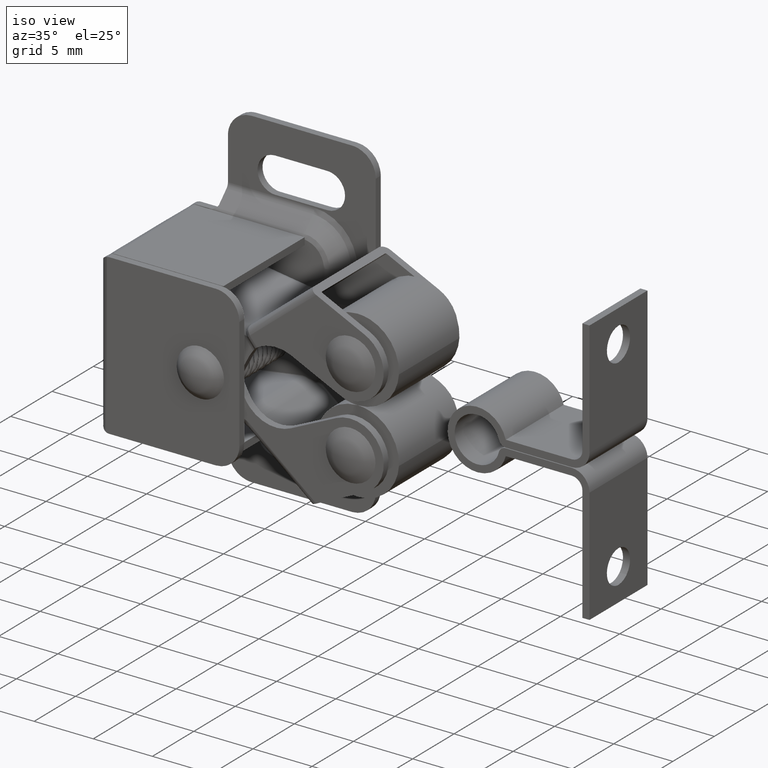
[diagram: clean part render]
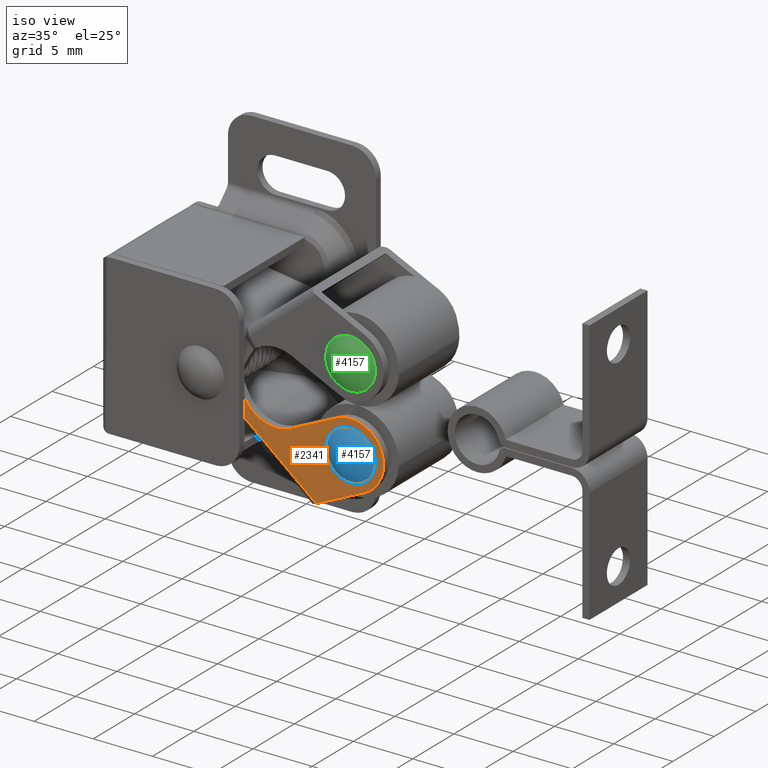
[diagram: same view with three faces highlighted in distinct colors, each labeled with its STEP entity id]
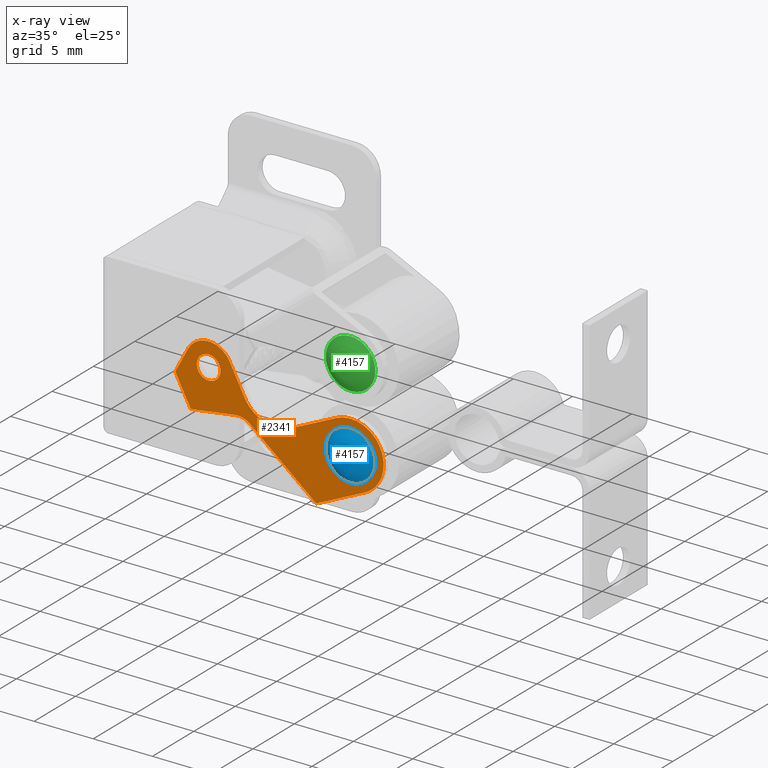
[diagram: x-ray of the same camera — body ghosted, the three highlighted faces saturated]
A machine part, iso view with three faces highlighted in distinct colors.
The next image is the same camera in x-ray (body ghosted, the three faces saturated) — at least one of them is partly hidden behind the body in this view.
Their STEP definitions:

[orange] entity #2341 — the highlighted face is a freeform B-spline surface patch.
#62=CARTESIAN_POINT('',(-0.200003999999993,-2.500000000001280,-9.000000000000002));
#63=VERTEX_POINT('',#62);
#64=CARTESIAN_POINT('',(0.796913333720286,-2.500000000001280,-9.921540904108889));
#65=VERTEX_POINT('',#64);
#66=CARTESIAN_POINT('',(-0.200003999999993,-2.500000000001280,-9.000000000000002));
#67=CARTESIAN_POINT('',(0.724386491354504,-2.500000000001280,-9.0));
#68=CARTESIAN_POINT('',(0.796913333720286,-2.500000000001280,-9.921540904108889));
#76=(BOUNDED_CURVE()B_SPLINE_CURVE(2,(#66,#67,#68),.UNSPECIFIED.,.F.,.U.)B_SPLINE_CURVE_WITH_KNOTS((3,3),(0.0,0.236331300576619),.UNSPECIFIED.)CURVE()GEOMETRIC_REPRESENTATION_ITEM()RATIONAL_B_SPLINE_CURVE((1.0,0.723120658670979,0.969723356054638))REPRESENTATION_ITEM(''));
#77=EDGE_CURVE('',#63,#65,#76,.T.);
#118=CARTESIAN_POINT('',(-1.196921333720272,-2.500000000001280,-10.078459095891111));
#119=VERTEX_POINT('',#118);
#125=CARTESIAN_POINT('',(-1.196921333720272,-2.500000000001280,-10.078459095891109));
#126=CARTESIAN_POINT('',(-1.200003999999993,-2.500000000001280,-10.039290107171691));
#127=CARTESIAN_POINT('',(-1.200003999999993,-2.500000000001280,-10.0));
#128=CARTESIAN_POINT('',(-1.200003999999993,-2.500000000001280,-9.000000000000002));
#129=CARTESIAN_POINT('',(-0.200003999999993,-2.500000000001280,-9.000000000000002));
#137=(BOUNDED_CURVE()B_SPLINE_CURVE(2,(#125,#126,#127,#128,#129),.UNSPECIFIED.,.F.,.U.)B_SPLINE_CURVE_WITH_KNOTS((3,2,3),(0.736331300576619,0.750000000000000,1.0),.UNSPECIFIED.)CURVE()GEOMETRIC_REPRESENTATION_ITEM()RATIONAL_B_SPLINE_CURVE((0.969723356054639,0.983986122515569,1.0,0.707106781186548,1.0))REPRESENTATION_ITEM(''));
#138=EDGE_CURVE('',#119,#63,#137,.T.);
#161=CARTESIAN_POINT('',(-0.200003999999993,-2.500000000001280,-11.0));
#162=VERTEX_POINT('',#161);
#163=CARTESIAN_POINT('',(0.796913333720286,-2.500000000001280,-9.921540904108889));
#164=CARTESIAN_POINT('',(0.799996000000007,-2.500000000001280,-9.960709892828307));
#165=CARTESIAN_POINT('',(0.799996000000007,-2.500000000001280,-10.0));
#166=CARTESIAN_POINT('',(0.799996000000007,-2.500000000001280,-11.0));
#167=CARTESIAN_POINT('',(-0.200003999999993,-2.500000000001280,-11.0));
#175=(BOUNDED_CURVE()B_SPLINE_CURVE(2,(#163,#164,#165,#166,#167),.UNSPECIFIED.,.F.,.U.)B_SPLINE_CURVE_WITH_KNOTS((3,2,3),(0.236331300576619,0.250000000000000,0.500000000000000),.UNSPECIFIED.)CURVE()GEOMETRIC_REPRESENTATION_ITEM()RATIONAL_B_SPLINE_CURVE((0.969723356054638,0.983986122515569,1.0,0.707106781186548,1.0))REPRESENTATION_ITEM(''));
#176=EDGE_CURVE('',#65,#162,#175,.T.);
#178=CARTESIAN_POINT('',(-0.200003999999993,-2.500000000001280,-11.0));
#179=CARTESIAN_POINT('',(-1.124394491354484,-2.500000000001280,-11.0));
#180=CARTESIAN_POINT('',(-1.196921333720271,-2.500000000001280,-10.078459095891109));
#188=(BOUNDED_CURVE()B_SPLINE_CURVE(2,(#178,#179,#180),.UNSPECIFIED.,.F.,.U.)B_SPLINE_CURVE_WITH_KNOTS((3,3),(0.500000000000000,0.736331300576618),.UNSPECIFIED.)CURVE()GEOMETRIC_REPRESENTATION_ITEM()RATIONAL_B_SPLINE_CURVE((1.0,0.723120658670980,0.969723356054636))REPRESENTATION_ITEM(''));
#189=EDGE_CURVE('',#162,#119,#188,.T.);
#620=CARTESIAN_POINT('',(11.799995999999901,-2.500000000001280,-5.400000000000000));
#621=VERTEX_POINT('',#620);
#622=CARTESIAN_POINT('',(12.896605067095930,-2.500000000001280,-6.413694994567136));
#623=VERTEX_POINT('',#622);
#624=CARTESIAN_POINT('',(11.799995999999901,-2.500000000001280,-5.400000000000000));
#625=CARTESIAN_POINT('',(12.816825540577945,-2.500000000001280,-5.399999999999999));
#626=CARTESIAN_POINT('',(12.896605067095937,-2.500000000001280,-6.413694994567136));
#634=(BOUNDED_CURVE()B_SPLINE_CURVE(2,(#624,#625,#626),.UNSPECIFIED.,.F.,.U.)B_SPLINE_CURVE_WITH_KNOTS((3,3),(0.0,0.236331300591425),.UNSPECIFIED.)CURVE()GEOMETRIC_REPRESENTATION_ITEM()RATIONAL_B_SPLINE_CURVE((1.0,0.723120658653632,0.969723356085537))REPRESENTATION_ITEM(''));
#635=EDGE_CURVE('',#621,#623,#634,.T.);
#676=CARTESIAN_POINT('',(10.703386932903859,-2.500000000001280,-6.586305005432863));
#677=VERTEX_POINT('',#676);
#683=CARTESIAN_POINT('',(10.703386932903863,-2.500000000001280,-6.586305005432863));
#684=CARTESIAN_POINT('',(10.699995999999903,-2.500000000001280,-6.543219117841283));
#685=CARTESIAN_POINT('',(10.699995999999899,-2.500000000001280,-6.500000000000000));
#686=CARTESIAN_POINT('',(10.699995999999899,-2.500000000001280,-5.400000000000000));
#687=CARTESIAN_POINT('',(11.799995999999901,-2.500000000001280,-5.400000000000000));
#695=(BOUNDED_CURVE()B_SPLINE_CURVE(2,(#683,#684,#685,#686,#687),.UNSPECIFIED.,.F.,.U.)B_SPLINE_CURVE_WITH_KNOTS((3,2,3),(0.736331300591425,0.750000000000000,1.0),.UNSPECIFIED.)CURVE()GEOMETRIC_REPRESENTATION_ITEM()RATIONAL_B_SPLINE_CURVE((0.969723356085537,0.983986122532915,1.0,0.707106781186548,1.0))REPRESENTATION_ITEM(''));
#696=EDGE_CURVE('',#677,#621,#695,.T.);
#719=CARTESIAN_POINT('',(11.799995999999901,-2.500000000001280,-7.600000000000000));
#720=VERTEX_POINT('',#719);
#721=CARTESIAN_POINT('',(12.896605067095937,-2.500000000001280,-6.413694994567136));
#722=CARTESIAN_POINT('',(12.899995999999900,-2.500000000001280,-6.456780882158716));
#723=CARTESIAN_POINT('',(12.899995999999900,-2.500000000001280,-6.500000000000000));
#724=CARTESIAN_POINT('',(12.899995999999900,-2.500000000001280,-7.600000000000000));
#725=CARTESIAN_POINT('',(11.799995999999901,-2.500000000001280,-7.600000000000000));
#733=(BOUNDED_CURVE()B_SPLINE_CURVE(2,(#721,#722,#723,#724,#725),.UNSPECIFIED.,.F.,.U.)B_SPLINE_CURVE_WITH_KNOTS((3,2,3),(0.236331300591425,0.250000000000000,0.500000000000000),.UNSPECIFIED.)CURVE()GEOMETRIC_REPRESENTATION_ITEM()RATIONAL_B_SPLINE_CURVE((0.969723356085537,0.983986122532915,1.0,0.707106781186548,1.0))REPRESENTATION_ITEM(''));
#734=EDGE_CURVE('',#623,#720,#733,.T.);
#736=CARTESIAN_POINT('',(11.799995999999901,-2.500000000001280,-7.600000000000000));
#737=CARTESIAN_POINT('',(10.783166459421864,-2.500000000001279,-7.599999999999999));
#738=CARTESIAN_POINT('',(10.703386932903866,-2.500000000001279,-6.586305005432863));
#746=(BOUNDED_CURVE()B_SPLINE_CURVE(2,(#736,#737,#738),.UNSPECIFIED.,.F.,.U.)B_SPLINE_CURVE_WITH_KNOTS((3,3),(0.500000000000000,0.736331300591424),.UNSPECIFIED.)CURVE()GEOMETRIC_REPRESENTATION_ITEM()RATIONAL_B_SPLINE_CURVE((1.0,0.723120658653634,0.969723356085535))REPRESENTATION_ITEM(''));
#747=EDGE_CURVE('',#720,#677,#746,.T.);
#1758=CARTESIAN_POINT('',(8.900847887341021,-2.500000000000000,-2.033816582321980));
#1759=VERTEX_POINT('',#1758);
#1775=CARTESIAN_POINT('',(3.287669057536205,-2.500000000000000,-6.621513464968430));
#1776=VERTEX_POINT('',#1775);
#1777=CARTESIAN_POINT('',(3.287669057536205,-2.500000000000000,-6.621513464968430));
#1778=CARTESIAN_POINT('',(8.900847887341021,-2.500000000000000,-2.033816582321980));
#1779=QUASI_UNIFORM_CURVE('',1,(#1777,#1778),.UNSPECIFIED.,.F.,.U.);
#1780=EDGE_CURVE('',#1776,#1759,#1779,.T.);
#1822=CARTESIAN_POINT('',(2.042344131129845,-2.500000000000000,-6.965625745661891));
#1823=VERTEX_POINT('',#1822);
#1853=CARTESIAN_POINT('',(2.042344131129846,-2.500000000000000,-6.965625745661886));
#1854=CARTESIAN_POINT('',(2.740937932960835,-2.500000000000000,-7.068361276504739));
#1855=CARTESIAN_POINT('',(3.287669057536205,-2.500000000000000,-6.621513464968431));
#1863=(BOUNDED_CURVE()B_SPLINE_CURVE(2,(#1853,#1854,#1855),.UNSPECIFIED.,.F.,.U.)CURVE()GEOMETRIC_REPRESENTATION_ITEM()QUASI_UNIFORM_CURVE()RATIONAL_B_SPLINE_CURVE((1.0,0.914870239579503,1.0))REPRESENTATION_ITEM(''));
#1864=EDGE_CURVE('',#1823,#1776,#1863,.T.);
#1885=CARTESIAN_POINT('',(-1.709442315284630,-2.500000000000000,-6.413886278218620));
#1886=VERTEX_POINT('',#1885);
#1908=CARTESIAN_POINT('',(-1.709442315284630,-2.500000000000000,-6.413886278218620));
#1909=CARTESIAN_POINT('',(2.042344131129845,-2.500000000000000,-6.965625745661891));
#1910=QUASI_UNIFORM_CURVE('',1,(#1908,#1909),.UNSPECIFIED.,.F.,.U.);
#1911=EDGE_CURVE('',#1886,#1823,#1910,.T.);
#2237=CARTESIAN_POINT('',(-3.901724736756783,-2.500000000000000,-1.536005739925364));
#2238=CARTESIAN_POINT('',(15.479499769806591,-2.500000000000000,-1.536005739925364));
#2239=CARTESIAN_POINT('',(-3.901724736756783,-2.500000000000000,-12.497811109710399));
#2240=CARTESIAN_POINT('',(15.479499769806591,-2.500000000000000,-12.497811109710399));
#2241=B_SPLINE_SURFACE_WITH_KNOTS('',1,1,((#2237,#2239),(#2238,#2240)),.UNSPECIFIED.,.F.,.F.,.U.,(2,2),(2,2),(0.0,19.381224506563370),(0.0,10.961805369785040),.UNSPECIFIED.);
#2242=ORIENTED_EDGE('',*,*,#1864,.T.);
#2243=ORIENTED_EDGE('',*,*,#1780,.T.);
#2244=CARTESIAN_POINT('',(12.995941137095519,-2.500000000000040,-3.968258459270095));
#2245=VERTEX_POINT('',#2244);
#2246=CARTESIAN_POINT('',(12.995941137095519,-2.500000000000040,-3.968258459270095));
#2247=CARTESIAN_POINT('',(8.900847887341021,-2.500000000000000,-2.033816582321980));
#2248=QUASI_UNIFORM_CURVE('',1,(#2246,#2247),.UNSPECIFIED.,.F.,.U.);
#2249=EDGE_CURVE('',#2245,#1759,#2248,.T.);
#2250=ORIENTED_EDGE('',*,*,#2249,.F.);
#2251=CARTESIAN_POINT('',(10.609010057465939,-2.500000000000040,-9.034078231761269));
#2252=VERTEX_POINT('',#2251);
#2253=CARTESIAN_POINT('',(10.609010057465930,-2.500000000000040,-9.034078231761297));
#2254=CARTESIAN_POINT('',(13.140608762455132,-2.500000000000040,-10.223898826875178));
#2255=CARTESIAN_POINT('',(14.332907099948599,-2.500000000000040,-7.693466111691767));
#2256=CARTESIAN_POINT('',(15.525205437442063,-2.500000000000040,-5.163033396508354));
#2257=CARTESIAN_POINT('',(12.995941137095519,-2.500000000000040,-3.968258459270111));
#2265=(BOUNDED_CURVE()B_SPLINE_CURVE(2,(#2253,#2254,#2255,#2256,#2257),.UNSPECIFIED.,.F.,.U.)B_SPLINE_CURVE_WITH_KNOTS((3,2,3),(0.0,0.500000000000000,1.0),.UNSPECIFIED.)CURVE()GEOMETRIC_REPRESENTATION_ITEM()RATIONAL_B_SPLINE_CURVE((1.0,0.707452808165757,1.0,0.707452808165757,1.0))REPRESENTATION_ITEM(''));
#2266=EDGE_CURVE('',#2252,#2245,#2265,.T.);
#2267=ORIENTED_EDGE('',*,*,#2266,.F.);
#2268=CARTESIAN_POINT('',(6.761515384807741,-2.500000000000040,-7.216614862725040));
#2269=VERTEX_POINT('',#2268);
#2270=CARTESIAN_POINT('',(6.761515384807741,-2.500000000000040,-7.216614862725040));
#2271=CARTESIAN_POINT('',(10.609010057465939,-2.500000000000040,-9.034078231761269));
#2272=QUASI_UNIFORM_CURVE('',1,(#2270,#2271),.UNSPECIFIED.,.F.,.U.);
#2273=EDGE_CURVE('',#2269,#2252,#2272,.T.);
#2274=ORIENTED_EDGE('',*,*,#2273,.F.);
#2275=CARTESIAN_POINT('',(2.822049135708155,-2.500000000000040,-8.538348498938470));
#2276=VERTEX_POINT('',#2275);
#2277=CARTESIAN_POINT('',(6.761515384807733,-2.500000000000040,-7.216614862725057));
#2278=CARTESIAN_POINT('',(4.157323206898069,-2.500000000000040,-5.986457681240268));
#2279=CARTESIAN_POINT('',(2.822049135708164,-2.500000000000040,-8.538348498938472));
#2287=(BOUNDED_CURVE()B_SPLINE_CURVE(2,(#2277,#2278,#2279),.UNSPECIFIED.,.F.,.U.)CURVE()GEOMETRIC_REPRESENTATION_ITEM()QUASI_UNIFORM_CURVE()RATIONAL_B_SPLINE_CURVE((1.0,0.721372647324904,1.0))REPRESENTATION_ITEM(''));
#2288=EDGE_CURVE('',#2269,#2276,#2287,.T.);
#2289=ORIENTED_EDGE('',*,*,#2288,.T.);
#2290=CARTESIAN_POINT('',(1.572067242861175,-2.500000000000040,-10.927234334041000));
#2291=VERTEX_POINT('',#2290);
#2292=CARTESIAN_POINT('',(1.572067242861175,-2.500000000000040,-10.927234334041000));
#2293=CARTESIAN_POINT('',(2.822049135708155,-2.500000000000040,-8.538348498938470));
#2294=QUASI_UNIFORM_CURVE('',1,(#2292,#2293),.UNSPECIFIED.,.F.,.U.);
#2295=EDGE_CURVE('',#2291,#2276,#2294,.T.);
#2296=ORIENTED_EDGE('',*,*,#2295,.F.);
#2297=CARTESIAN_POINT('',(-1.972075242861160,-2.500000000000040,-10.927234334041000));
#2298=VERTEX_POINT('',#2297);
#2299=CARTESIAN_POINT('',(-1.972075242861165,-2.500000000000040,-10.927234334041000));
#2300=CARTESIAN_POINT('',(-1.410751784865482,-2.500000000000040,-12.000000000000002));
#2301=CARTESIAN_POINT('',(-0.200003999999993,-2.500000000000040,-12.0));
#2302=CARTESIAN_POINT('',(1.010743784865494,-2.500000000000040,-12.000000000000002));
#2303=CARTESIAN_POINT('',(1.572067242861179,-2.500000000000040,-10.927234334041000));
#2311=(BOUNDED_CURVE()B_SPLINE_CURVE(2,(#2299,#2300,#2301,#2302,#2303),.UNSPECIFIED.,.F.,.U.)B_SPLINE_CURVE_WITH_KNOTS((3,2,3),(0.0,0.500000000000000,1.0),.UNSPECIFIED.)CURVE()GEOMETRIC_REPRESENTATION_ITEM()RATIONAL_B_SPLINE_CURVE((1.0,0.855458113241233,1.0,0.855458113241233,1.0))REPRESENTATION_ITEM(''));
#2312=EDGE_CURVE('',#2298,#2291,#2311,.T.);
#2313=ORIENTED_EDGE('',*,*,#2312,.F.);
#2314=CARTESIAN_POINT('',(-3.021560988830220,-2.500000000000040,-8.921523973727469));
#2315=VERTEX_POINT('',#2314);
#2316=CARTESIAN_POINT('',(-3.021560988830220,-2.500000000000040,-8.921523973727469));
#2317=CARTESIAN_POINT('',(-1.972075242861160,-2.500000000000040,-10.927234334041000));
#2318=QUASI_UNIFORM_CURVE('',1,(#2316,#2317),.UNSPECIFIED.,.F.,.U.);
#2319=EDGE_CURVE('',#2315,#2298,#2318,.T.);
#2320=ORIENTED_EDGE('',*,*,#2319,.F.);
#2321=CARTESIAN_POINT('',(-1.709442315284630,-2.500000000000000,-6.413886278218620));
#2322=CARTESIAN_POINT('',(-3.021560988830220,-2.500000000000040,-8.921523973727469));
#2323=QUASI_UNIFORM_CURVE('',1,(#2321,#2322),.UNSPECIFIED.,.F.,.U.);
#2324=EDGE_CURVE('',#1886,#2315,#2323,.T.);
#2325=ORIENTED_EDGE('',*,*,#2324,.F.);
#2326=ORIENTED_EDGE('',*,*,#1911,.T.);
#2327=EDGE_LOOP('',(#2242,#2243,#2250,#2267,#2274,#2289,#2296,#2313,#2320,#2325,#2326));
#2328=FACE_OUTER_BOUND('',#2327,.T.);
#2329=ORIENTED_EDGE('',*,*,#747,.F.);
#2330=ORIENTED_EDGE('',*,*,#734,.F.);
#2331=ORIENTED_EDGE('',*,*,#635,.F.);
#2332=ORIENTED_EDGE('',*,*,#696,.F.);
#2333=EDGE_LOOP('',(#2329,#2330,#2331,#2332));
#2334=FACE_BOUND('',#2333,.T.);
#2335=ORIENTED_EDGE('',*,*,#189,.F.);
#2336=ORIENTED_EDGE('',*,*,#176,.F.);
#2337=ORIENTED_EDGE('',*,*,#77,.F.);
#2338=ORIENTED_EDGE('',*,*,#138,.F.);
#2339=EDGE_LOOP('',(#2335,#2336,#2337,#2338));
#2340=FACE_BOUND('',#2339,.T.);
#2341=ADVANCED_FACE('',(#2328,#2334,#2340),#2241,.T.);

[blue] entity #4157 — the highlighted face is a freeform B-spline surface patch.
#4056=CARTESIAN_POINT('',(11.799995999999901,-11.500000000000000,-4.400025333572080));
#4057=VERTEX_POINT('',#4056);
#4058=CARTESIAN_POINT('',(11.799995999999901,-11.500000000000000,-8.599974666427920));
#4059=VERTEX_POINT('',#4058);
#4060=CARTESIAN_POINT('',(11.799995999999901,-11.500000000000000,-4.400025333572080));
#4061=CARTESIAN_POINT('',(9.700021333571979,-11.500000000000000,-4.400025333572079));
#4062=CARTESIAN_POINT('',(9.700021333571979,-11.500000000000000,-6.500000000000000));
#4063=CARTESIAN_POINT('',(9.700021333571979,-11.500000000000000,-8.599974666427920));
#4064=CARTESIAN_POINT('',(11.799995999999901,-11.500000000000000,-8.599974666427920));
#4072=(BOUNDED_CURVE()B_SPLINE_CURVE(2,(#4060,#4061,#4062,#4063,#4064),.UNSPECIFIED.,.F.,.U.)B_SPLINE_CURVE_WITH_KNOTS((3,2,3),(0.500000000000000,0.750000000000000,1.0),.UNSPECIFIED.)CURVE()GEOMETRIC_REPRESENTATION_ITEM()RATIONAL_B_SPLINE_CURVE((1.0,0.707106781186548,1.0,0.707106781186548,1.0))REPRESENTATION_ITEM(''));
#4073=EDGE_CURVE('',#4057,#4059,#4072,.T.);
#4075=CARTESIAN_POINT('',(11.799995999999901,-11.500000000000000,-8.599974666427920));
#4076=CARTESIAN_POINT('',(13.899970666427821,-11.500000000000000,-8.599974666427920));
#4077=CARTESIAN_POINT('',(13.899970666427819,-11.500000000000000,-6.500000000000000));
#4078=CARTESIAN_POINT('',(13.899970666427821,-11.500000000000000,-4.400025333572079));
#4079=CARTESIAN_POINT('',(11.799995999999901,-11.500000000000000,-4.400025333572080));
#4087=(BOUNDED_CURVE()B_SPLINE_CURVE(2,(#4075,#4076,#4077,#4078,#4079),.UNSPECIFIED.,.F.,.U.)B_SPLINE_CURVE_WITH_KNOTS((3,2,3),(0.0,0.250000000000000,0.500000000000000),.UNSPECIFIED.)CURVE()GEOMETRIC_REPRESENTATION_ITEM()RATIONAL_B_SPLINE_CURVE((1.0,0.707106781186548,1.0,0.707106781186548,1.0))REPRESENTATION_ITEM(''));
#4088=EDGE_CURVE('',#4059,#4057,#4087,.T.);
#4129=CARTESIAN_POINT('',(9.777352666015130,-10.716866456194888,-8.522643567234853));
#4130=CARTESIAN_POINT('',(10.668843750186598,-11.370557186996811,-8.762304760514278));
#4131=CARTESIAN_POINT('',(12.931148587650918,-11.370557186996811,-8.762304760514278));
#4132=CARTESIAN_POINT('',(13.822639810089166,-10.716866107088590,-8.522643439242790));
#4133=CARTESIAN_POINT('',(9.537691438548604,-11.370557355627499,-7.631152411169488));
#4134=CARTESIAN_POINT('',(10.516798854589270,-12.199980999999999,-7.783197293388198));
#4135=CARTESIAN_POINT('',(13.083193528659020,-12.199980999999999,-7.783197293388198));
#4136=CARTESIAN_POINT('',(14.062301077006239,-11.370556918889271,-7.631152331109298));
#4137=CARTESIAN_POINT('',(9.537691438548604,-11.370557355627499,-5.368847532524225));
#4138=CARTESIAN_POINT('',(10.516798854589270,-12.199980999999999,-5.216802642737054));
#4139=CARTESIAN_POINT('',(13.083193528659020,-12.199980999999999,-5.216802642737054));
#4140=CARTESIAN_POINT('',(14.062301077006239,-11.370556918889271,-5.368847612584414));
#4141=CARTESIAN_POINT('',(9.777352687347134,-10.716866398010497,-4.477356353414397));
#4142=CARTESIAN_POINT('',(10.668843763529962,-11.370557114207109,-4.237695153559880));
#4143=CARTESIAN_POINT('',(12.931148574307553,-11.370557114207109,-4.237695153559880));
#4144=CARTESIAN_POINT('',(13.822639788757144,-10.716866048904206,-4.477356481406472));
#4152=(BOUNDED_SURFACE()B_SPLINE_SURFACE(2,2,((#4129,#4133,#4137,#4141),(#4130,#4134,#4138,#4142),(#4131,#4135,#4139,#4143),(#4132,#4136,#4140,#4144)),.UNSPECIFIED.,.F.,.F.,.U.)B_SPLINE_SURFACE_WITH_KNOTS((3,1,3),(3,1,3),(0.0,2.404774307145028,4.809549332516499),(0.0,2.404774584462231,4.809549288628870),.UNSPECIFIED.)GEOMETRIC_REPRESENTATION_ITEM()RATIONAL_B_SPLINE_SURFACE(((1.268831853693779,1.134415911346122,1.134415911346122,1.268831867075642),(1.134415942347657,1.0,1.0,1.134415955729519),(1.134415942347657,1.0,1.0,1.134415955729519),(1.268831933984953,1.134415991637297,1.134415991637297,1.268831947366816)))REPRESENTATION_ITEM('')SURFACE());
#4153=ORIENTED_EDGE('',*,*,#4088,.T.);
#4154=ORIENTED_EDGE('',*,*,#4073,.T.);
#4155=EDGE_LOOP('',(#4153,#4154));
#4156=FACE_OUTER_BOUND('',#4155,.T.);
#4157=ADVANCED_FACE('',(#4156),#4152,.T.);

[green] entity #4157 — the highlighted face is a freeform B-spline surface patch.
#4056=CARTESIAN_POINT('',(11.799995999999901,-11.500000000000000,-4.400025333572080));
#4057=VERTEX_POINT('',#4056);
#4058=CARTESIAN_POINT('',(11.799995999999901,-11.500000000000000,-8.599974666427920));
#4059=VERTEX_POINT('',#4058);
#4060=CARTESIAN_POINT('',(11.799995999999901,-11.500000000000000,-4.400025333572080));
#4061=CARTESIAN_POINT('',(9.700021333571979,-11.500000000000000,-4.400025333572079));
#4062=CARTESIAN_POINT('',(9.700021333571979,-11.500000000000000,-6.500000000000000));
#4063=CARTESIAN_POINT('',(9.700021333571979,-11.500000000000000,-8.599974666427920));
#4064=CARTESIAN_POINT('',(11.799995999999901,-11.500000000000000,-8.599974666427920));
#4072=(BOUNDED_CURVE()B_SPLINE_CURVE(2,(#4060,#4061,#4062,#4063,#4064),.UNSPECIFIED.,.F.,.U.)B_SPLINE_CURVE_WITH_KNOTS((3,2,3),(0.500000000000000,0.750000000000000,1.0),.UNSPECIFIED.)CURVE()GEOMETRIC_REPRESENTATION_ITEM()RATIONAL_B_SPLINE_CURVE((1.0,0.707106781186548,1.0,0.707106781186548,1.0))REPRESENTATION_ITEM(''));
#4073=EDGE_CURVE('',#4057,#4059,#4072,.T.);
#4075=CARTESIAN_POINT('',(11.799995999999901,-11.500000000000000,-8.599974666427920));
#4076=CARTESIAN_POINT('',(13.899970666427821,-11.500000000000000,-8.599974666427920));
#4077=CARTESIAN_POINT('',(13.899970666427819,-11.500000000000000,-6.500000000000000));
#4078=CARTESIAN_POINT('',(13.899970666427821,-11.500000000000000,-4.400025333572079));
#4079=CARTESIAN_POINT('',(11.799995999999901,-11.500000000000000,-4.400025333572080));
#4087=(BOUNDED_CURVE()B_SPLINE_CURVE(2,(#4075,#4076,#4077,#4078,#4079),.UNSPECIFIED.,.F.,.U.)B_SPLINE_CURVE_WITH_KNOTS((3,2,3),(0.0,0.250000000000000,0.500000000000000),.UNSPECIFIED.)CURVE()GEOMETRIC_REPRESENTATION_ITEM()RATIONAL_B_SPLINE_CURVE((1.0,0.707106781186548,1.0,0.707106781186548,1.0))REPRESENTATION_ITEM(''));
#4088=EDGE_CURVE('',#4059,#4057,#4087,.T.);
#4129=CARTESIAN_POINT('',(9.777352666015130,-10.716866456194888,-8.522643567234853));
#4130=CARTESIAN_POINT('',(10.668843750186598,-11.370557186996811,-8.762304760514278));
#4131=CARTESIAN_POINT('',(12.931148587650918,-11.370557186996811,-8.762304760514278));
#4132=CARTESIAN_POINT('',(13.822639810089166,-10.716866107088590,-8.522643439242790));
#4133=CARTESIAN_POINT('',(9.537691438548604,-11.370557355627499,-7.631152411169488));
#4134=CARTESIAN_POINT('',(10.516798854589270,-12.199980999999999,-7.783197293388198));
#4135=CARTESIAN_POINT('',(13.083193528659020,-12.199980999999999,-7.783197293388198));
#4136=CARTESIAN_POINT('',(14.062301077006239,-11.370556918889271,-7.631152331109298));
#4137=CARTESIAN_POINT('',(9.537691438548604,-11.370557355627499,-5.368847532524225));
#4138=CARTESIAN_POINT('',(10.516798854589270,-12.199980999999999,-5.216802642737054));
#4139=CARTESIAN_POINT('',(13.083193528659020,-12.199980999999999,-5.216802642737054));
#4140=CARTESIAN_POINT('',(14.062301077006239,-11.370556918889271,-5.368847612584414));
#4141=CARTESIAN_POINT('',(9.777352687347134,-10.716866398010497,-4.477356353414397));
#4142=CARTESIAN_POINT('',(10.668843763529962,-11.370557114207109,-4.237695153559880));
#4143=CARTESIAN_POINT('',(12.931148574307553,-11.370557114207109,-4.237695153559880));
#4144=CARTESIAN_POINT('',(13.822639788757144,-10.716866048904206,-4.477356481406472));
#4152=(BOUNDED_SURFACE()B_SPLINE_SURFACE(2,2,((#4129,#4133,#4137,#4141),(#4130,#4134,#4138,#4142),(#4131,#4135,#4139,#4143),(#4132,#4136,#4140,#4144)),.UNSPECIFIED.,.F.,.F.,.U.)B_SPLINE_SURFACE_WITH_KNOTS((3,1,3),(3,1,3),(0.0,2.404774307145028,4.809549332516499),(0.0,2.404774584462231,4.809549288628870),.UNSPECIFIED.)GEOMETRIC_REPRESENTATION_ITEM()RATIONAL_B_SPLINE_SURFACE(((1.268831853693779,1.134415911346122,1.134415911346122,1.268831867075642),(1.134415942347657,1.0,1.0,1.134415955729519),(1.134415942347657,1.0,1.0,1.134415955729519),(1.268831933984953,1.134415991637297,1.134415991637297,1.268831947366816)))REPRESENTATION_ITEM('')SURFACE());
#4153=ORIENTED_EDGE('',*,*,#4088,.T.);
#4154=ORIENTED_EDGE('',*,*,#4073,.T.);
#4155=EDGE_LOOP('',(#4153,#4154));
#4156=FACE_OUTER_BOUND('',#4155,.T.);
#4157=ADVANCED_FACE('',(#4156),#4152,.T.);